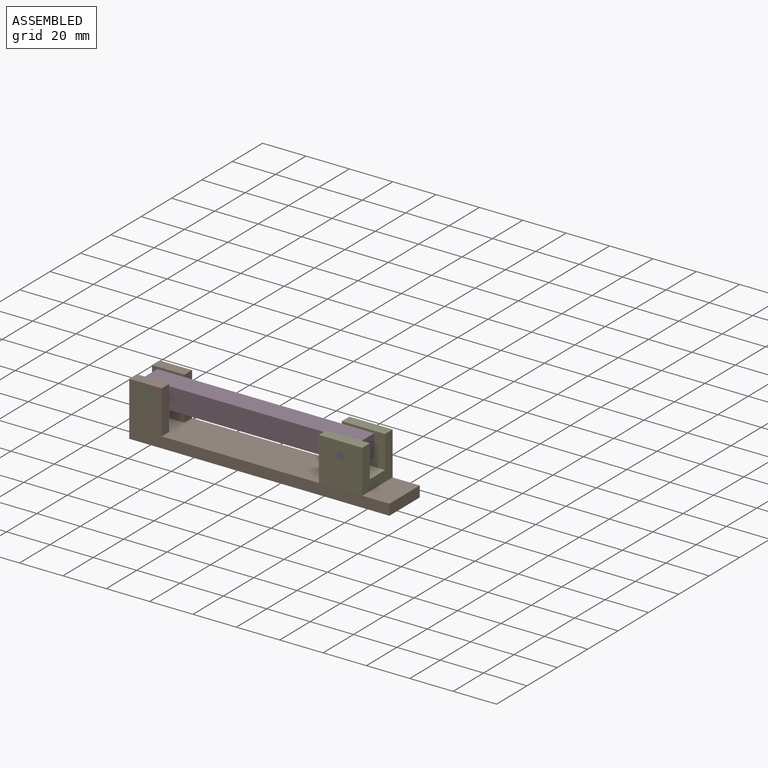
[diagram: assembled view]
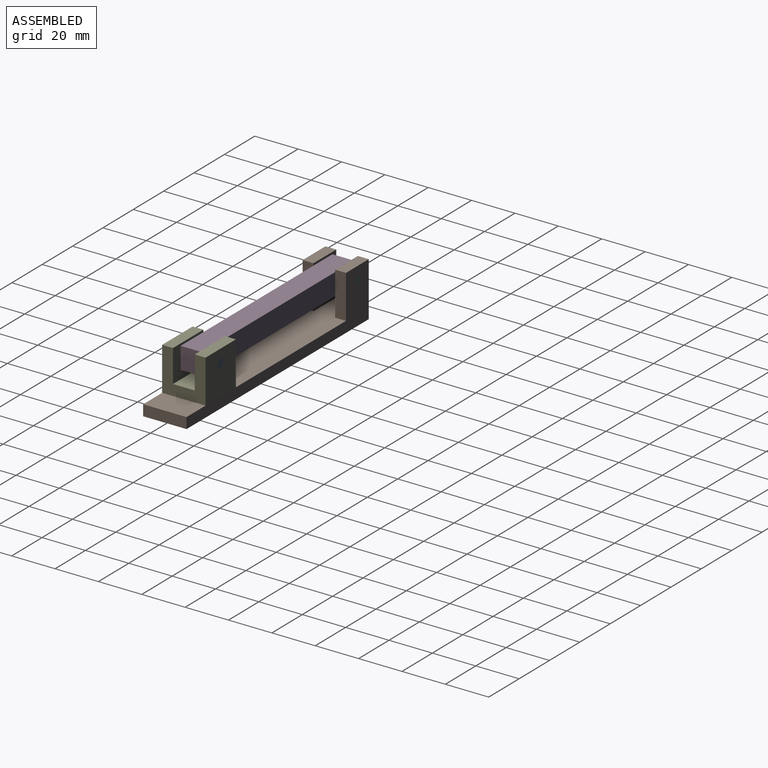
[diagram: assembled view, second angle]
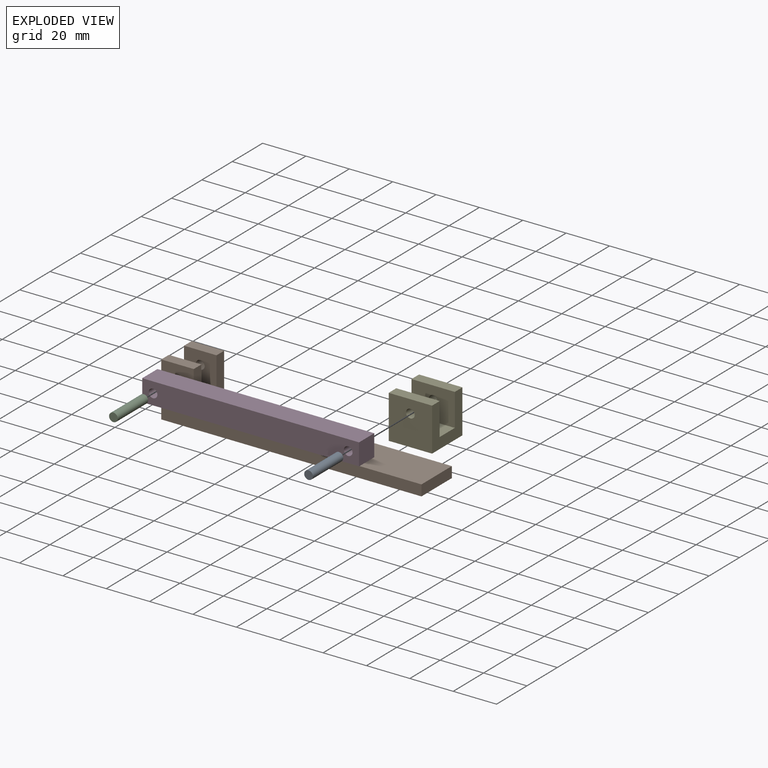
[diagram: exploded view]
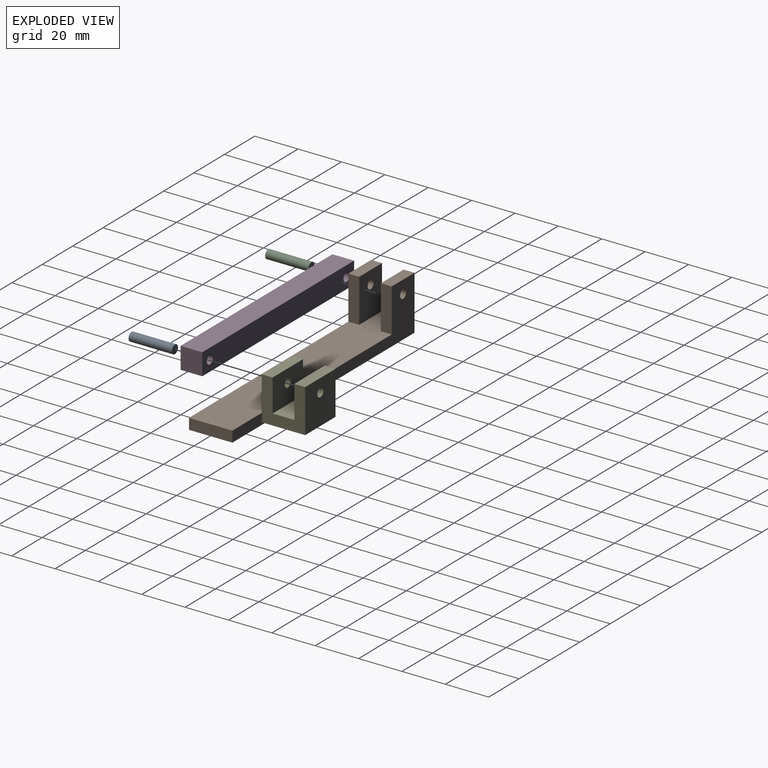
[diagram: exploded view, second angle]
ASSEMBLY  parts=5 mates=10
PART A: 3 faces, bbox 4x20x4 mm
  f0: cylinder r=2mm len=20mm, axis (0,1,0), area 251.3mm2, adj f1,f2
  f1: plane 4x4mm, normal (0,-1,0), area 12.6mm2, adj f0
  f2: plane 4x4mm, normal (0,1,0), area 12.6mm2, adj f0
PART B: 14 faces, bbox 120x20x25 mm
  f0: plane 120x20mm, normal (0,0,1), area 2250mm2, adj f1,f2,f3,f4,f6,f7,f9,f10
  f1: plane 25x20mm, normal (-1,0,0), area 300mm2, adj f0,f2,f4,f5,f6,f8,f9,f11
  f2: plane 120x25mm, normal (0,-1,0), area 887.4mm2, adj f0,f1,f3,f5,f10,f11,f12
  f3: plane 20x5mm, normal (1,0,0), area 100mm2, adj f0,f2,f4,f5
  f4: plane 120x25mm, normal (0,1,0), area 887.4mm2, adj f0,f1,f3,f5,f7,f8,f13
  f5: plane 120x20mm, normal (0,0,-1), area 2400mm2, adj f1,f2,f3,f4
  f6: plane 20x15mm, normal (0,-1,0), area 287.4mm2, adj f0,f1,f7,f8,f13
  f7: plane 20x5mm, normal (1,0,0), area 100mm2, adj f0,f4,f6,f8
  f8: plane 15x5mm, normal (0,0,1), area 75mm2, adj f1,f4,f6,f7
  f9: plane 20x15mm, normal (0,1,0), area 287.4mm2, adj f0,f1,f10,f11,f12
  f10: plane 20x5mm, normal (1,0,0), area 100mm2, adj f0,f2,f9,f11
  f11: plane 15x5mm, normal (0,0,1), area 75mm2, adj f1,f2,f9,f10
  f12: cylinder r=2mm len=5mm, axis (0,-1,0), area 62.8mm2, adj f2,f9
  f13: cylinder r=2mm len=5mm, axis (0,-1,0), area 62.8mm2, adj f4,f6
PART C: same geometry as A
PART D: 8 faces, bbox 100x10x10 mm
  f0: plane 10x10mm, normal (-1,0,0), area 100mm2, adj f1,f4,f6,f7
  f1: plane 100x10mm, normal (0,0,-1), area 1000mm2, adj f0,f2,f6,f7
  f2: plane 10x10mm, normal (1,0,0), area 100mm2, adj f1,f4,f6,f7
  f3: cylinder r=2mm len=10mm, axis (0,1,0), area 125.7mm2, adj f6,f7
  f4: plane 100x10mm, normal (0,0,1), area 1000mm2, adj f0,f2,f6,f7
  f5: cylinder r=2mm len=10mm, axis (0,1,0), area 125.7mm2, adj f6,f7
  f6: plane 100x10mm, normal (0,-1,0), area 974.9mm2, adj f0,f1,f2,f3,f4,f5
  f7: plane 100x10mm, normal (0,1,0), area 974.9mm2, adj f0,f1,f2,f3,f4,f5
PART E: 12 faces, bbox 20x20x20 mm
  f0: plane 20x10mm, normal (0,0,1), area 200mm2, adj f1,f3,f6,f8
  f1: plane 20x20mm, normal (-1,0,0), area 250mm2, adj f0,f2,f4,f5,f6,f7,f8,f9
  f2: plane 20x20mm, normal (0,-1,0), area 387.4mm2, adj f1,f3,f5,f7,f11
  f3: plane 20x20mm, normal (1,0,0), area 250mm2, adj f0,f2,f4,f5,f6,f7,f8,f9
  f4: plane 20x20mm, normal (0,1,0), area 387.4mm2, adj f1,f3,f5,f9,f10
  f5: plane 20x20mm, normal (0,0,-1), area 400mm2, adj f1,f2,f3,f4
  f6: plane 20x15mm, normal (0,1,0), area 287.4mm2, adj f0,f1,f3,f7,f11
  f7: plane 20x5mm, normal (0,0,1), area 100mm2, adj f1,f2,f3,f6
  f8: plane 20x15mm, normal (0,-1,0), area 287.4mm2, adj f0,f1,f3,f9,f10
  f9: plane 20x5mm, normal (0,0,1), area 100mm2, adj f1,f3,f4,f8
  f10: cylinder r=2mm len=5mm, axis (0,-1,0), area 62.8mm2, adj f4,f8
  f11: cylinder r=2mm len=5mm, axis (0,-1,0), area 62.8mm2, adj f2,f6
PLACE A t=(50.06,11.43,-2.65)mm
PLACE B t=(-47.44,-8.57,-21.65)mm fixed
PLACE C t=(-39.94,11.43,-2.65)mm
PLACE D t=(-44.94,6.43,-7.65)mm
PLACE E t=(39.23,-8.57,-21.65)mm
MATE cylindrical C.f0 <-> B.f12  axis (0,1,0) through (-39.94,1.43,-2.65)mm
MATE cylindrical B.f12 <-> D.f3  axis (0,-1,0) through (-39.94,-6.07,-2.65)mm
MATE planar A.f0 <-> E.f2  axis (0,-1,0) through (50.06,-8.57,-2.65)mm
MATE planar C.f0 <-> B.f2  axis (0,-1,0) through (-39.94,-8.57,-2.65)mm
MATE parallel D.f4 <-> B.f0  axis (0,0,1) through (5.06,1.43,2.35)mm
MATE cylindrical E.f10 <-> D.f5  axis (0,-1,0) through (50.06,-6.07,-2.65)mm
MATE parallel E.f9 <-> D.f4  axis (0,0,1) through (50.06,8.93,3.35)mm
MATE cylindrical A.f0 <-> E.f10  axis (0,1,0) through (50.06,1.43,-2.65)mm
MATE planar E.f8 <-> D.f7  axis (0,-1,0) through (50.06,6.43,-4.22)mm
MATE planar D.f6 <-> B.f9  axis (0,-1,0) through (5.06,-3.57,-2.65)mm
